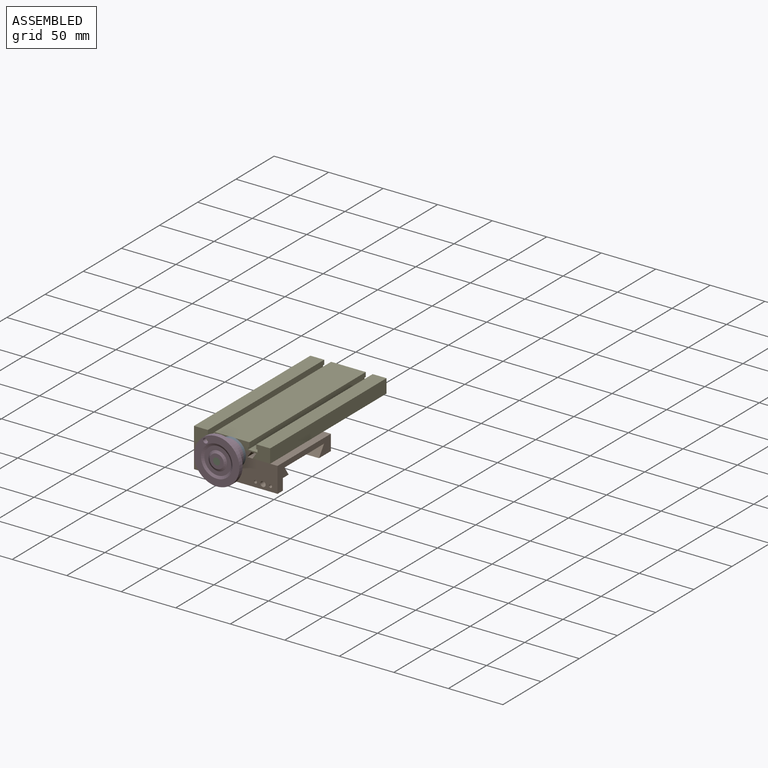
[diagram: assembled view]
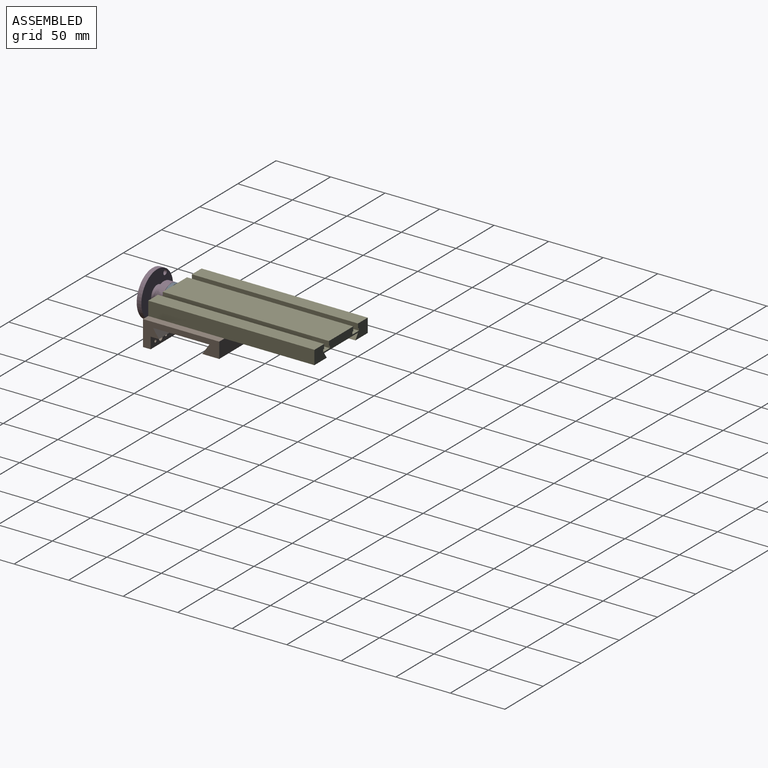
[diagram: assembled view, second angle]
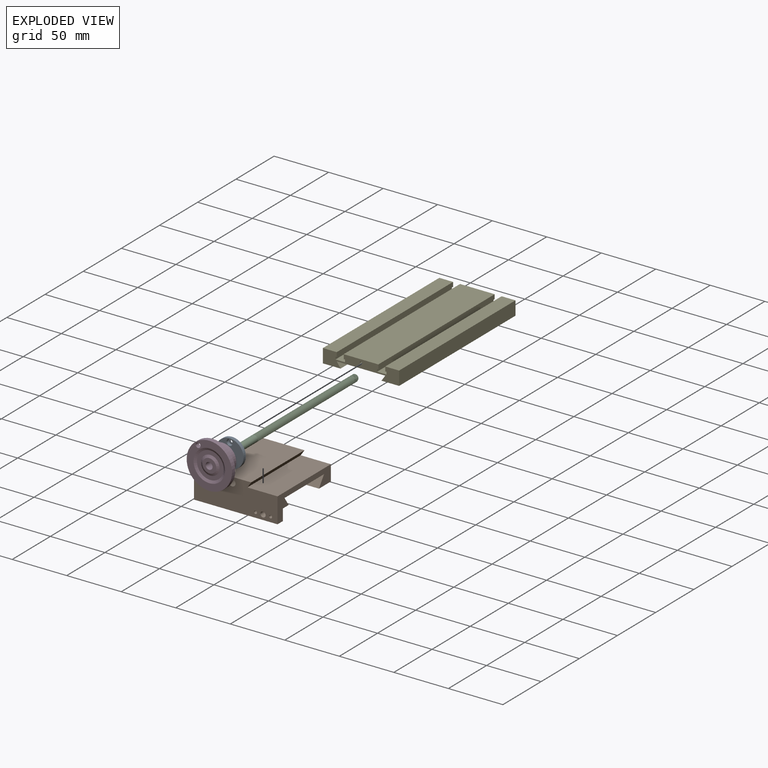
[diagram: exploded view]
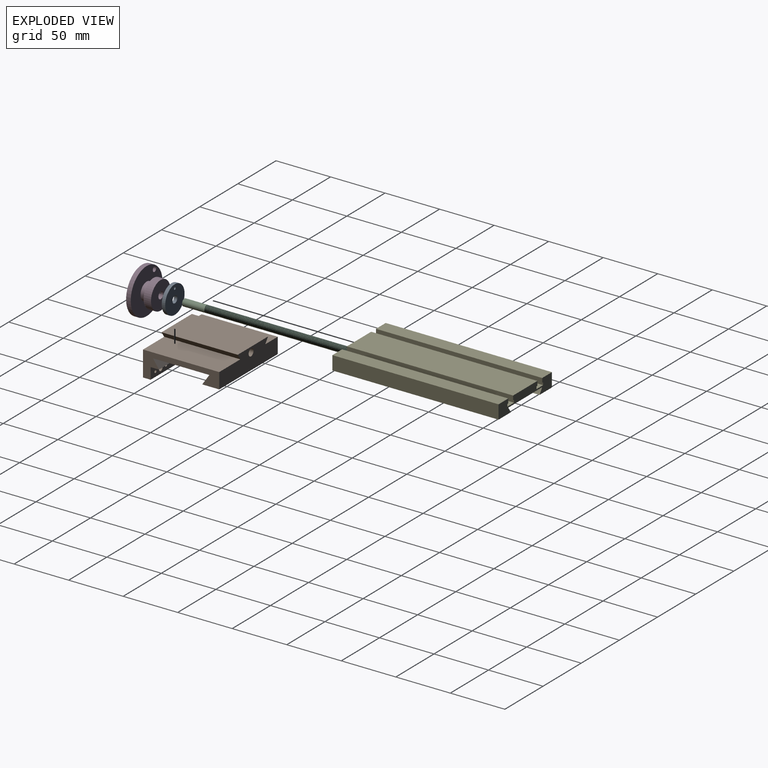
[diagram: exploded view, second angle]
ASSEMBLY  parts=5 mates=6
PART A: 7 faces, bbox 25.4x3.2x25.4 mm
  f0: cylinder r=12.7mm len=25.4mm, axis (0,1,0), area 253.4mm2, adj f1,f2
  f1: plane 25.4x25.4mm, normal (0,-1,0), area 450.8mm2, adj f0,f3,f6
  f2: plane 25.4x25.4mm, normal (0,1,0), area 471mm2, adj f0,f3,f4
  f3: cylinder r=3.17mm len=6.35mm, axis (0,-1,0), area 63.3mm2, adj f1,f2
  f4: cylinder r=1.13mm len=2.26mm, axis (0,-1,0), area 2.3mm2, adj f2,f5
  f5: plane 5.56x5.56mm, normal (0,-1,0), area 20.2mm2, adj f4,f6
  f6: cylinder r=2.78mm len=5.56mm, axis (0,-1,0), area 49.7mm2, adj f1,f5
PART B: 20 faces, bbox 76.6x69.9x28.2 mm
  f0: plane 76.63x6.99mm, normal (0,0,-1), area 535.3mm2, adj f1,f5,f8,f14
  f1: plane 69.85x23.15mm, normal (-1,0,0), area 620.5mm2, adj f0,f4,f8,f9,f10,f11,f12,f13
  f2: plane 69.85x39.72mm, normal (0,0,1), area 2774.6mm2, adj f3,f7,f8,f9
  f3: plane 69.85x5.08mm, normal (-0.82,0,-0.57), area 430.6mm2, adj f2,f4,f8,f9
  f4: plane 69.85x16.19mm, normal (0,0,1), area 1131mm2, adj f1,f3,f8,f9
  f5: plane 69.85x23.15mm, normal (1,0,0), area 620.5mm2, adj f0,f6,f8,f9,f10,f11,f12,f13
  f6: plane 69.85x27.7mm, normal (0,0,1), area 1935mm2, adj f5,f7,f8,f9
  f7: plane 69.85x5.08mm, normal (0.82,0,-0.57), area 430.6mm2, adj f2,f6,f8,f9
  f8: plane 76.63x28.23mm, normal (0,-1,0), area 1896.8mm2, adj f0,f1,f2,f3,f4,f5,f6,f7
  f9: plane 76.63x19.43mm, normal (0,1,0), area 1252.1mm2, adj f1,f2,f3,f4,f5,f6,f7,f13
  f10: plane 76.63x7.87mm, normal (0,0.82,0.57), area 732.2mm2, adj f1,f5,f11,f15
  f11: plane 76.63x51.69mm, normal (0,0,-1), area 3961mm2, adj f1,f5,f10,f12
  f12: plane 76.63x9.53mm, normal (0,-0.82,0.57), area 885.7mm2, adj f1,f5,f11,f13
  f13: plane 76.63x15.56mm, normal (0,0,-1), area 1192.6mm2, adj f1,f5,f9,f12
  f14: plane 76.63x10.45mm, normal (0,1,0), area 771.2mm2, adj f0,f1,f5,f15,f17,f18,f19
  f15: plane 76.63x7.57mm, normal (0,0,-1), area 580.2mm2, adj f1,f5,f10,f14
  f16: cylinder r=3.17mm len=69.85mm, axis (0,-1,0), area 1393.4mm2, adj f8,f9
  f17: cylinder r=2.41mm len=6.99mm, axis (0,-1,0), area 105.9mm2, adj f8,f14
  f18: cylinder r=1.35mm len=6.99mm, axis (0,-1,0), area 59.4mm2, adj f8,f14
  f19: cylinder r=1.35mm len=6.99mm, axis (0,-1,0), area 59.4mm2, adj f8,f14
PART C: 111 faces, bbox 153.8x8x7 mm
  f0: plane 6.11x6.07mm, normal (-1,0,0), area 23.5mm2, adj f1,f106,f107,f108
  f1: cylinder r=3.17mm len=6.35mm, axis (-1,0,0), area 1.5mm2, adj f0,f2,f106,f108
  f2: cylinder r=3.17mm len=6.35mm, axis (-1,0,0), area 2.1mm2, adj f1,f3,f106,f108
  f3: cylinder r=3.17mm len=6.35mm, axis (-1,0,0), area 2.1mm2, adj f2,f4,f106,f108
  f4: cylinder r=3.17mm len=6.35mm, axis (-1,0,0), area 2.1mm2, adj f3,f5,f106,f108
  f5: cylinder r=3.17mm len=6.35mm, axis (-1,0,0), area 2.1mm2, adj f4,f6,f106,f108
  f6: cylinder r=3.17mm len=6.35mm, axis (-1,0,0), area 2.1mm2, adj f5,f7,f106,f108
  f7: cylinder r=3.17mm len=6.35mm, axis (-1,0,0), area 2.1mm2, adj f6,f8,f106,f108
  f8: cylinder r=3.17mm len=6.35mm, axis (-1,0,0), area 2.1mm2, adj f7,f9,f106,f108
  f9: cylinder r=3.17mm len=6.35mm, axis (-1,0,0), area 2.1mm2, adj f8,f10,f106,f108
  f10: cylinder r=3.17mm len=6.35mm, axis (-1,0,0), area 2.1mm2, adj f9,f11,f106,f108
  f11: cylinder r=3.17mm len=6.35mm, axis (-1,0,0), area 2.1mm2, adj f10,f12,f106,f108
  f12: cylinder r=3.17mm len=6.35mm, axis (-1,0,0), area 2.1mm2, adj f11,f13,f106,f108
  f13: cylinder r=3.17mm len=6.35mm, axis (-1,0,0), area 2.1mm2, adj f12,f14,f106,f108
  f14: cylinder r=3.17mm len=6.35mm, axis (-1,0,0), area 2.1mm2, adj f13,f15,f106,f108
  f15: cylinder r=3.17mm len=6.35mm, axis (-1,0,0), area 2.1mm2, adj f14,f16,f106,f108
  f16: cylinder r=3.17mm len=6.35mm, axis (-1,0,0), area 2.1mm2, adj f15,f17,f106,f108
  f17: cylinder r=3.17mm len=6.35mm, axis (-1,0,0), area 2.1mm2, adj f16,f18,f106,f108
  f18: cylinder r=3.17mm len=6.35mm, axis (-1,0,0), area 2.1mm2, adj f17,f19,f106,f108
  f19: cylinder r=3.17mm len=6.35mm, axis (-1,0,0), area 2.1mm2, adj f18,f20,f106,f108
  f20: cylinder r=3.17mm len=6.35mm, axis (-1,0,0), area 2.1mm2, adj f19,f21,f106,f108
  f21: cylinder r=3.17mm len=6.35mm, axis (-1,0,0), area 2.1mm2, adj f20,f22,f106,f108
  f22: cylinder r=3.17mm len=6.35mm, axis (-1,0,0), area 2.1mm2, adj f21,f23,f106,f108
  f23: cylinder r=3.17mm len=6.35mm, axis (-1,0,0), area 2.1mm2, adj f22,f24,f106,f108
  f24: cylinder r=3.17mm len=6.35mm, axis (-1,0,0), area 2.1mm2, adj f23,f25,f106,f108
  f25: cylinder r=3.17mm len=6.35mm, axis (-1,0,0), area 2.1mm2, adj f24,f26,f106,f108
  f26: cylinder r=3.17mm len=6.35mm, axis (-1,0,0), area 2.1mm2, adj f25,f27,f106,f108
  f27: cylinder r=3.17mm len=6.35mm, axis (-1,0,0), area 2.1mm2, adj f26,f28,f106,f108
  f28: cylinder r=3.17mm len=6.35mm, axis (-1,0,0), area 2.1mm2, adj f27,f29,f106,f108
  f29: cylinder r=3.17mm len=6.35mm, axis (-1,0,0), area 2.1mm2, adj f28,f30,f106,f108
  f30: cylinder r=3.17mm len=6.35mm, axis (-1,0,0), area 2.1mm2, adj f29,f31,f106,f108
  f31: cylinder r=3.17mm len=6.35mm, axis (-1,0,0), area 2.1mm2, adj f30,f32,f106,f108
  f32: cylinder r=3.17mm len=6.35mm, axis (-1,0,0), area 2.1mm2, adj f31,f33,f106,f108
  f33: cylinder r=3.17mm len=6.35mm, axis (-1,0,0), area 2.1mm2, adj f32,f34,f106,f108
  f34: cylinder r=3.17mm len=6.35mm, axis (-1,0,0), area 2.1mm2, adj f33,f35,f106,f108
  f35: cylinder r=3.17mm len=6.35mm, axis (-1,0,0), area 2.1mm2, adj f34,f36,f106,f108
  f36: cylinder r=3.17mm len=6.35mm, axis (-1,0,0), area 2.1mm2, adj f35,f37,f106,f108
  f37: cylinder r=3.17mm len=6.35mm, axis (-1,0,0), area 2.1mm2, adj f36,f38,f106,f108
  f38: cylinder r=3.17mm len=6.35mm, axis (-1,0,0), area 2.1mm2, adj f37,f39,f106,f108
  f39: cylinder r=3.17mm len=6.35mm, axis (-1,0,0), area 2.1mm2, adj f38,f40,f106,f108
  f40: cylinder r=3.17mm len=6.35mm, axis (-1,0,0), area 2.1mm2, adj f39,f41,f106,f108
  f41: cylinder r=3.17mm len=6.35mm, axis (-1,0,0), area 2.1mm2, adj f40,f42,f106,f108
  f42: cylinder r=3.17mm len=6.35mm, axis (-1,0,0), area 2.1mm2, adj f41,f43,f106,f108
  f43: cylinder r=3.17mm len=6.35mm, axis (-1,0,0), area 2.1mm2, adj f42,f44,f106,f108
  f44: cylinder r=3.17mm len=6.35mm, axis (-1,0,0), area 2.1mm2, adj f43,f45,f106,f108
  f45: cylinder r=3.17mm len=6.35mm, axis (-1,0,0), area 2.1mm2, adj f44,f46,f106,f108
  f46: cylinder r=3.17mm len=6.35mm, axis (-1,0,0), area 2.1mm2, adj f45,f47,f106,f108
  f47: cylinder r=3.17mm len=6.35mm, axis (-1,0,0), area 2.1mm2, adj f46,f48,f106,f108
  f48: cylinder r=3.17mm len=6.35mm, axis (-1,0,0), area 2.1mm2, adj f47,f49,f106,f108
  f49: cylinder r=3.17mm len=6.35mm, axis (-1,0,0), area 2.1mm2, adj f48,f50,f106,f108
  f50: cylinder r=3.17mm len=6.35mm, axis (-1,0,0), area 2.1mm2, adj f49,f51,f106,f108
  f51: cylinder r=3.17mm len=6.35mm, axis (-1,0,0), area 2.1mm2, adj f50,f52,f106,f108
  f52: cylinder r=3.17mm len=6.35mm, axis (-1,0,0), area 2.1mm2, adj f51,f53,f106,f108
  f53: cylinder r=3.17mm len=6.35mm, axis (-1,0,0), area 2.1mm2, adj f52,f54,f106,f108
  f54: cylinder r=3.17mm len=6.35mm, axis (-1,0,0), area 2.1mm2, adj f53,f55,f106,f108
  f55: cylinder r=3.17mm len=6.35mm, axis (-1,0,0), area 2.1mm2, adj f54,f56,f106,f108
  f56: cylinder r=3.17mm len=6.35mm, axis (-1,0,0), area 2.1mm2, adj f55,f57,f106,f108
  f57: cylinder r=3.17mm len=6.35mm, axis (-1,0,0), area 2.1mm2, adj f56,f58,f106,f108
  f58: cylinder r=3.17mm len=6.35mm, axis (-1,0,0), area 2.1mm2, adj f57,f59,f106,f108
  f59: cylinder r=3.17mm len=6.35mm, axis (-1,0,0), area 2.1mm2, adj f58,f60,f106,f108
  f60: cylinder r=3.17mm len=6.35mm, axis (-1,0,0), area 2.1mm2, adj f59,f61,f106,f108
  f61: cylinder r=3.17mm len=6.35mm, axis (-1,0,0), area 2.1mm2, adj f60,f62,f106,f108
  f62: cylinder r=3.17mm len=6.35mm, axis (-1,0,0), area 2.1mm2, adj f61,f63,f106,f108
  f63: cylinder r=3.17mm len=6.35mm, axis (-1,0,0), area 2.1mm2, adj f62,f64,f106,f108
  f64: cylinder r=3.17mm len=6.35mm, axis (-1,0,0), area 2.1mm2, adj f63,f65,f106,f108
  f65: cylinder r=3.17mm len=6.35mm, axis (-1,0,0), area 2.1mm2, adj f64,f66,f106,f108
  f66: cylinder r=3.17mm len=6.35mm, axis (-1,0,0), area 2.1mm2, adj f65,f67,f106,f108
  f67: cylinder r=3.17mm len=6.35mm, axis (-1,0,0), area 2.1mm2, adj f66,f68,f106,f108
  f68: cylinder r=3.17mm len=6.35mm, axis (-1,0,0), area 2.1mm2, adj f67,f69,f106,f108
  f69: cylinder r=3.17mm len=6.35mm, axis (-1,0,0), area 2.1mm2, adj f68,f70,f106,f108
  f70: cylinder r=3.17mm len=6.35mm, axis (-1,0,0), area 2.1mm2, adj f69,f71,f106,f108
  f71: cylinder r=3.17mm len=6.35mm, axis (-1,0,0), area 2.1mm2, adj f70,f72,f106,f108
  f72: cylinder r=3.17mm len=6.35mm, axis (-1,0,0), area 2.1mm2, adj f71,f73,f106,f108
  f73: cylinder r=3.17mm len=6.35mm, axis (-1,0,0), area 2.1mm2, adj f72,f74,f106,f108
  f74: cylinder r=3.17mm len=6.35mm, axis (-1,0,0), area 2.1mm2, adj f73,f75,f106,f108
  f75: cylinder r=3.17mm len=6.35mm, axis (-1,0,0), area 2.1mm2, adj f74,f76,f106,f108
  f76: cylinder r=3.17mm len=6.35mm, axis (-1,0,0), area 2.1mm2, adj f75,f77,f106,f108
  f77: cylinder r=3.17mm len=6.35mm, axis (-1,0,0), area 2.1mm2, adj f76,f78,f106,f108
  f78: cylinder r=3.17mm len=6.35mm, axis (-1,0,0), area 2.1mm2, adj f77,f79,f106,f108
  f79: cylinder r=3.17mm len=6.35mm, axis (-1,0,0), area 2.1mm2, adj f78,f80,f106,f108
  f80: cylinder r=3.17mm len=6.35mm, axis (-1,0,0), area 2.1mm2, adj f79,f81,f106,f108
  f81: cylinder r=3.17mm len=6.35mm, axis (-1,0,0), area 2.1mm2, adj f80,f82,f106,f108
  f82: cylinder r=3.17mm len=6.35mm, axis (-1,0,0), area 2.1mm2, adj f81,f83,f106,f108
  f83: cylinder r=3.17mm len=6.35mm, axis (-1,0,0), area 2.1mm2, adj f82,f84,f106,f108
  f84: cylinder r=3.17mm len=6.35mm, axis (-1,0,0), area 2.1mm2, adj f83,f85,f106,f108
  f85: cylinder r=3.17mm len=6.35mm, axis (-1,0,0), area 2.1mm2, adj f84,f86,f106,f108
  f86: cylinder r=3.17mm len=6.35mm, axis (-1,0,0), area 2.1mm2, adj f85,f87,f106,f108
  f87: cylinder r=3.17mm len=6.35mm, axis (-1,0,0), area 2.1mm2, adj f86,f88,f106,f108
  f88: cylinder r=3.17mm len=6.35mm, axis (-1,0,0), area 2.1mm2, adj f87,f89,f106,f108
  f89: cylinder r=3.17mm len=6.35mm, axis (-1,0,0), area 2.1mm2, adj f88,f90,f106,f108
  f90: cylinder r=3.17mm len=6.35mm, axis (-1,0,0), area 2.1mm2, adj f89,f91,f106,f108
  f91: cylinder r=3.17mm len=6.35mm, axis (-1,0,0), area 2.1mm2, adj f90,f92,f106,f108
  f92: cylinder r=3.17mm len=6.35mm, axis (-1,0,0), area 2.1mm2, adj f91,f93,f106,f108
  f93: cylinder r=3.17mm len=6.35mm, axis (-1,0,0), area 2.1mm2, adj f92,f94,f106,f108
  f94: cylinder r=3.17mm len=6.35mm, axis (-1,0,0), area 2.1mm2, adj f93,f95,f106,f108
  f95: cylinder r=3.17mm len=6.35mm, axis (-1,0,0), area 2.1mm2, adj f94,f96,f106,f108
  f96: cylinder r=3.17mm len=6.35mm, axis (-1,0,0), area 2.1mm2, adj f95,f97,f106,f108
  f97: cylinder r=3.17mm len=6.35mm, axis (-1,0,0), area 2.1mm2, adj f96,f98,f106,f108
  f98: cylinder r=3.17mm len=6.35mm, axis (-1,0,0), area 2.1mm2, adj f97,f99,f106,f108
  f99: cylinder r=3.17mm len=6.35mm, axis (-1,0,0), area 2.1mm2, adj f98,f100,f106,f108
  f100: cylinder r=3.17mm len=6.35mm, axis (-1,0,0), area 2.1mm2, adj f99,f101,f106,f108
  f101: cylinder r=3.17mm len=6.35mm, axis (-1,0,0), area 2.1mm2, adj f100,f102,f106,f108
  f102: cylinder r=3.17mm len=6.35mm, axis (-1,0,0), area 2.1mm2, adj f101,f103,f106,f108
  f103: cylinder r=3.17mm len=6.35mm, axis (-1,0,0), area 2.1mm2, adj f102,f104,f106,f108
  f104: cylinder r=3.17mm len=6.35mm, axis (-1,0,0), area 2.1mm2, adj f103,f105,f106,f108
  f105: cylinder r=3.17mm len=20.72mm, axis (-1,0,0), area 400.8mm2, adj f104,f106,f109,f110
  f106: bspline ~133.67x7.33mm, area 1894.6mm2, adj f0,f1,f2,f3,f4,f5,f6,f7
  f107: cylinder r=2.26mm len=132.42mm, axis (1,0,0), area 1236.6mm2, adj f0,f106,f108,f109
  f108: bspline ~133.03x7.33mm, area 1887mm2, adj f0,f1,f2,f3,f4,f5,f6,f7
  f109: plane 1.17x0.92mm, normal (0,1,0), area 0.6mm2, adj f105,f106,f107,f108
  f110: plane 6.35x6.35mm, normal (1,0,0), area 31.7mm2, adj f105
PART D: 14 faces, bbox 41.6x41.6x17.1 mm
  f0: plane 25.4x25.4mm, normal (0,0,-1), area 475mm2, adj f10,f12
  f1: plane 12.7x12.7mm, normal (0,0,1), area 95mm2, adj f2,f12
  f2: cone r=8.55mm half-angle=60deg, axis (0,0,-1), area 118.9mm2, adj f1,f3
  f3: plane 24.49x24.49mm, normal (0,0,1), area 241.5mm2, adj f2,f4
  f4: cone r=14.45mm half-angle=60deg, axis (0,0,1), area 213mm2, adj f3,f5
  f5: plane 41.59x41.59mm, normal (0,0,1), area 687.5mm2, adj f4,f6,f13
  f6: cylinder r=20.8mm len=41.59mm, axis (0,0,1), area 555.9mm2, adj f5,f7
  f7: plane 41.59x41.59mm, normal (0,0,-1), area 1145.2mm2, adj f6,f8,f13
  f8: cylinder r=7.94mm len=15.88mm, axis (0,0,1), area 294.5mm2, adj f7,f9
  f9: plane 24.13x24.13mm, normal (0,0,1), area 259.4mm2, adj f8,f11
  f10: cylinder r=12.7mm len=25.4mm, axis (0,0,1), area 506.7mm2, adj f0,f11
  f11: torus R=12.06mm, axis (0,0,-1), area 78.1mm2, adj f9,f10
  f12: cylinder r=3.17mm len=17.15mm, axis (0,0,1), area 342mm2, adj f0,f1
  f13: cylinder r=2.22mm len=4.45mm, axis (0,0,1), area 59.4mm2, adj f5,f7
PART E: 28 faces, bbox 69.9x152.4x12.7 mm
  f0: plane 152.4x12.7mm, normal (0,0,1), area 1935.5mm2, adj f2,f3,f11,f25
  f1: plane 152.4x31.75mm, normal (0,0,1), area 4838.7mm2, adj f2,f3,f18,f19
  f2: plane 69.85x12.7mm, normal (0,-1,0), area 583.9mm2, adj f0,f1,f4,f5,f6,f7,f8,f9
  f3: plane 69.85x12.7mm, normal (0,1,0), area 587.9mm2, adj f0,f1,f4,f5,f6,f7,f8,f9
  f4: plane 152.4x12.7mm, normal (0,0,1), area 1935.5mm2, adj f2,f3,f5,f12
  f5: plane 152.4x12.7mm, normal (-1,0,0), area 1935.5mm2, adj f2,f3,f4,f6
  f6: plane 152.4x16.19mm, normal (0,0,-1), area 2467.6mm2, adj f2,f3,f5,f7
  f7: plane 152.4x5.08mm, normal (0.82,0,0.57), area 939.4mm2, adj f2,f3,f6,f8
  f8: plane 152.4x44.45mm, normal (0,0,-1), area 6774.2mm2, adj f2,f3,f7,f9
  f9: plane 152.4x5.08mm, normal (-0.82,0,0.57), area 939.4mm2, adj f2,f3,f8,f10
  f10: plane 152.4x16.19mm, normal (0,0,-1), area 2467.6mm2, adj f2,f3,f9,f11
  f11: plane 152.4x12.7mm, normal (1,0,0), area 1935.5mm2, adj f0,f2,f3,f10
  f12: plane 152.4x4.06mm, normal (1,0,0), area 619.4mm2, adj f2,f3,f4,f13
  f13: plane 152.4x1.14mm, normal (0,0,-1), area 174.2mm2, adj f2,f3,f12,f14
  f14: plane 152.4x2.29mm, normal (1,0,0), area 348.4mm2, adj f2,f3,f13,f15
  f15: plane 152.4x8.64mm, normal (0,0,1), area 1316.1mm2, adj f2,f3,f14,f16
  f16: plane 152.4x2.29mm, normal (-1,0,0), area 348.4mm2, adj f2,f3,f15,f17
  f17: plane 152.4x1.14mm, normal (0,0,-1), area 174.2mm2, adj f2,f3,f16,f18
  f18: plane 152.4x4.06mm, normal (-1,0,0), area 619.4mm2, adj f1,f2,f3,f17
  f19: plane 152.4x4.06mm, normal (1,0,0), area 619.4mm2, adj f1,f2,f3,f20
  f20: plane 152.4x1.14mm, normal (0,0,-1), area 174.2mm2, adj f2,f3,f19,f21
  f21: plane 152.4x2.29mm, normal (1,0,0), area 348.4mm2, adj f2,f3,f20,f22
  f22: plane 152.4x8.64mm, normal (0,0,1), area 1316.1mm2, adj f2,f3,f21,f23
  f23: plane 152.4x2.29mm, normal (-1,0,0), area 348.4mm2, adj f2,f3,f22,f24
  f24: plane 152.4x1.14mm, normal (0,0,-1), area 174.2mm2, adj f2,f3,f23,f25
  f25: plane 152.4x4.06mm, normal (-1,0,0), area 619.4mm2, adj f0,f2,f3,f24
  f26: cone r=0mm half-angle=59deg, axis (0,-1,0), area 4.7mm2, adj f27
  f27: cylinder r=1.13mm len=12.7mm, axis (0,-1,0), area 90.2mm2, adj f2,f26
PLACE A rot(axis=(0,-1,0),0deg) t=(-196.78,76.2,-41.82)mm
PLACE B t=(-196.78,34.93,-41.82)mm
PLACE C rot(axis=(-0.69,0.69,-0.22),154.8deg) t=(-26.92,93.33,55.85)mm
PLACE D rot(axis=(0.81,0.41,-0.41),101.9deg) t=(-3.19,-3.18,23.62)mm
PLACE E rot(axis=(0.01,-1,0),0deg) t=(-196.78,76.2,-41.82)mm
MATE planar E.f8 <-> B.f2  axis (0,0,-1) through (-3.39,76.2,28.23)mm
MATE fastened D.f12 <-> C.f1  axis (0,-1,0) through (-3.39,-20.32,23.47)mm
MATE fastened E.f26 <-> A.f4  axis (0,-1,0) through (-3.39,0,32.68)mm
MATE cylindrical C.f1 <-> A.f0  axis (0,-1,0) through (-3.39,-20.32,23.47)mm
MATE planar A.f1 <-> D.f0  axis (0,-1,0) through (-3.39,-3.18,22.97)mm
MATE cylindrical C.f1 <-> B.f16  axis (0,-1,0) through (-3.39,-20.32,23.47)mm
